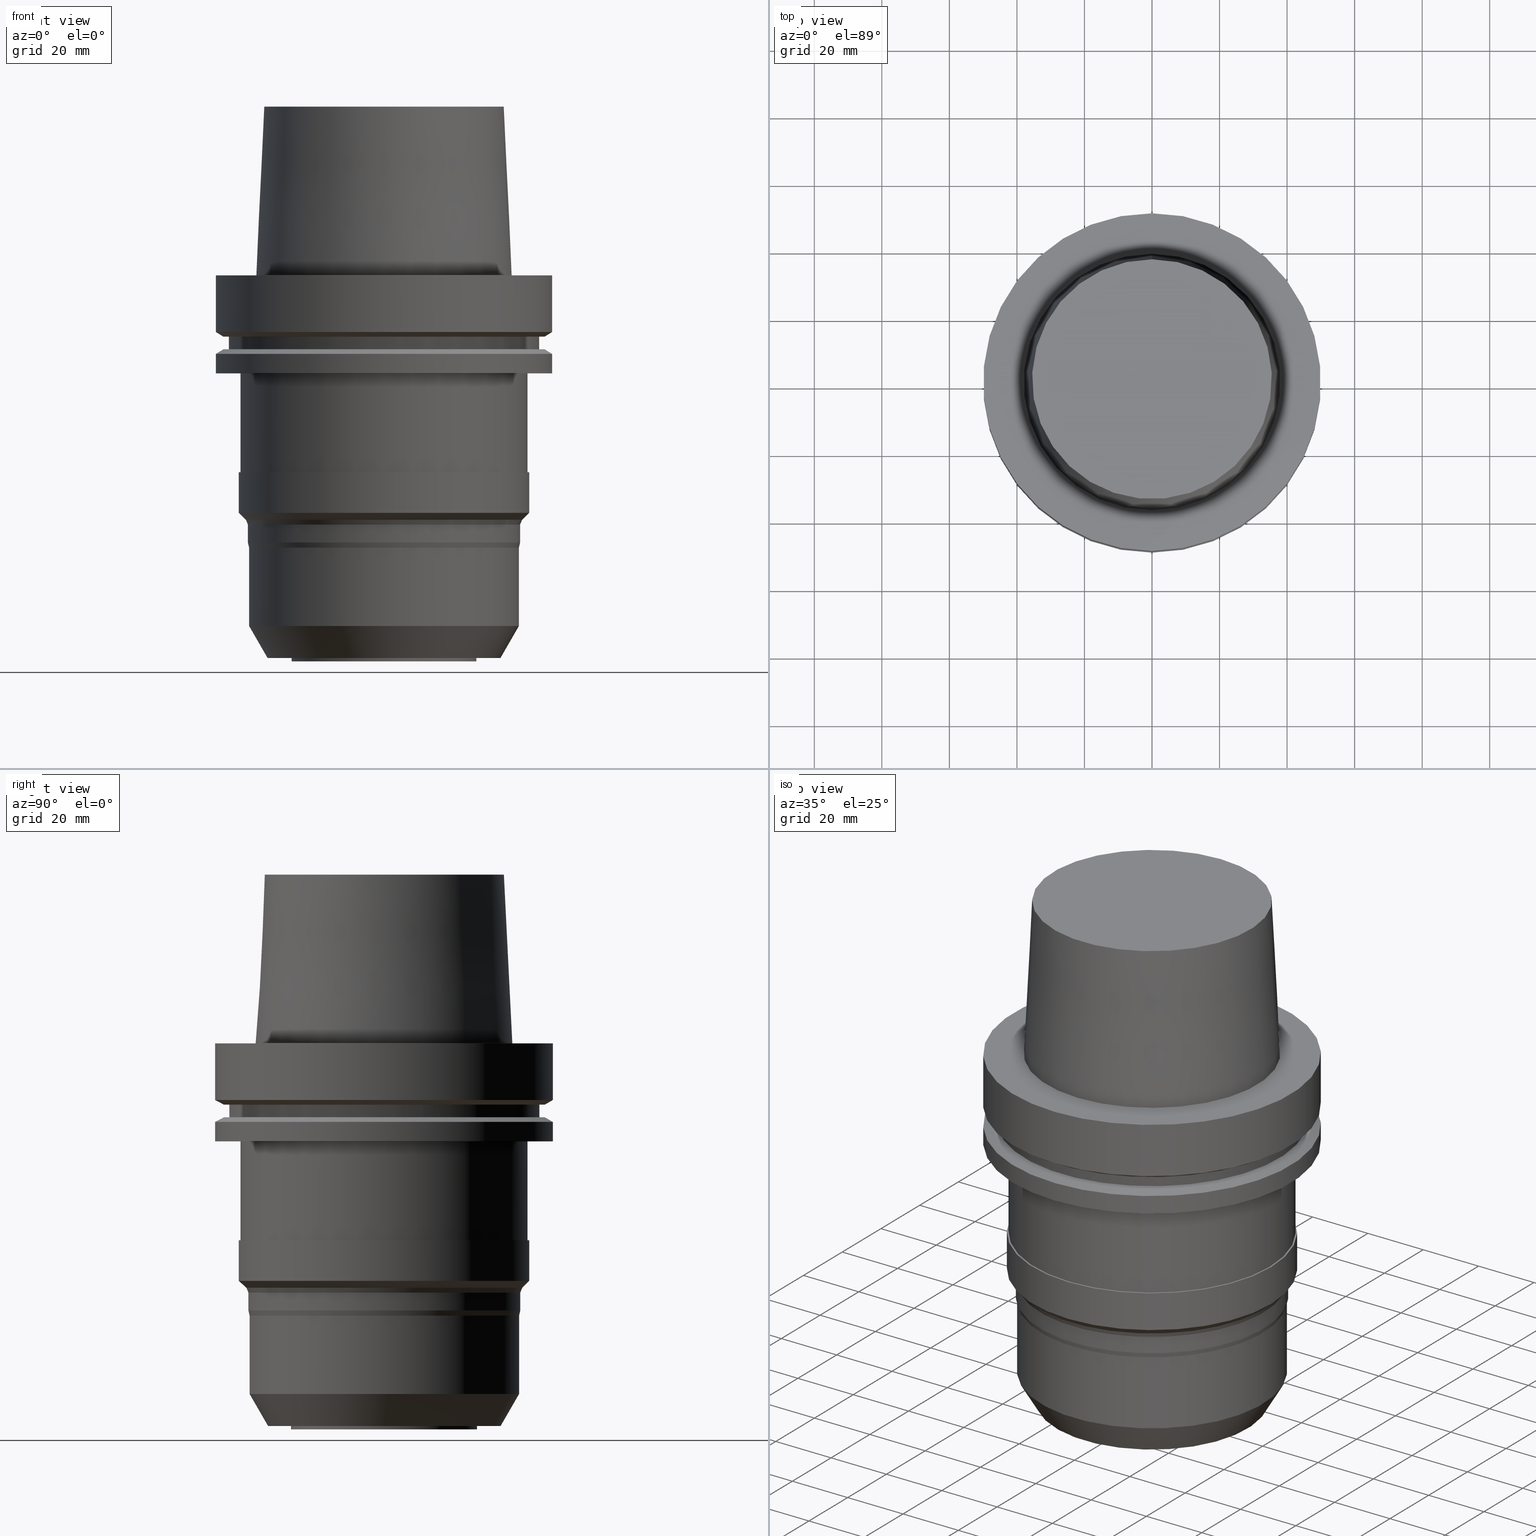
[diagram: canonical four-view strip — front | top / right | iso, engineering-drawing reading convention]
A machine part, canonical four-view strip (front | top / right | iso — engineering-drawing reading convention). The complete STEP part file that produces these views, byte-faithful:
ISO-10303-21;
HEADER;
FILE_DESCRIPTION((''),'1');
FILE_NAME('V:/90_\X2\53D65F9730C730FC30BF\X0\/00_\X2\6DE18DEF30C730FC30BF\X0\/ALL/HSK-BKUS\X2\52A05DE556F3\X0\_201801/HSK-A100-MEGADPG/HSK-A100-MEGA1.250DPG-4.5.stp','2018-02-01T05:08:22',(''),(''),'Spatial Interop R21 SP3','Kubotek KeyCreator 2011 V10.0.2 (22737)',' ');
FILE_SCHEMA(('automotive_design'));
ENDSEC;
DATA;
#1=MECHANICAL_DESIGN_GEOMETRIC_PRESENTATION_REPRESENTATION(' ',(#10,#11,#12,#13,#14,#15,#16,#17,#18,#19,#20,#21,#22,#23,#24,#25,#26,#27,#28,#29,#30,#31,#32,#33,#34,#35,#36,#37,#38,#39,#40,#41,#42,#43,#44,#45,#46,#47,#48,#49,#50,#51,#52,#53,#54,#55),#6);
#2=PRODUCT_DEFINITION_CONTEXT('',#56,'design');
#3=APPLICATION_PROTOCOL_DEFINITION('INTERNATIONAL STANDARD','automotive_design',1994,#56);
#4=PRODUCT_CATEGORY_RELATIONSHIP('NONE','NONE',#57,#58);
#5=SHAPE_DEFINITION_REPRESENTATION(#59,#60);
#6= (GEOMETRIC_REPRESENTATION_CONTEXT(3)GLOBAL_UNCERTAINTY_ASSIGNED_CONTEXT((#63))GLOBAL_UNIT_ASSIGNED_CONTEXT((#65,#66,#67))REPRESENTATION_CONTEXT('NONE','WORKSPACE'));
#10=STYLED_ITEM('',(#69,#70),#71);
#11=STYLED_ITEM('',(#72),#73);
#12=STYLED_ITEM('',(#74,#75),#76);
#13=STYLED_ITEM('',(#77,#78),#79);
#14=STYLED_ITEM('',(#80),#81);
#15=STYLED_ITEM('',(#82),#83);
#16=STYLED_ITEM('',(#84),#85);
#17=STYLED_ITEM('',(#86,#87),#88);
#18=STYLED_ITEM('',(#89,#90),#91);
#19=STYLED_ITEM('',(#92,#93),#94);
#20=STYLED_ITEM('',(#95,#96),#97);
#21=STYLED_ITEM('',(#98),#99);
#22=STYLED_ITEM('',(#100,#101),#102);
#23=STYLED_ITEM('',(#103),#104);
#24=STYLED_ITEM('',(#105,#106),#107);
#25=STYLED_ITEM('',(#108),#109);
#26=STYLED_ITEM('',(#110),#111);
#27=STYLED_ITEM('',(#112),#113);
#28=STYLED_ITEM('',(#114,#115),#116);
#29=STYLED_ITEM('',(#117,#118),#119);
#30=STYLED_ITEM('',(#120,#121),#122);
#31=STYLED_ITEM('',(#123,#124),#125);
#32=STYLED_ITEM('',(#126),#127);
#33=STYLED_ITEM('',(#128),#129);
#34=STYLED_ITEM('',(#130),#131);
#35=STYLED_ITEM('',(#132,#133),#134);
#36=STYLED_ITEM('',(#135,#136),#137);
#37=STYLED_ITEM('',(#138,#139),#140);
#38=STYLED_ITEM('',(#141,#142),#143);
#39=STYLED_ITEM('',(#144),#145);
#40=STYLED_ITEM('',(#146,#147),#148);
#41=STYLED_ITEM('',(#149,#150),#151);
#42=STYLED_ITEM('',(#152),#153);
#43=STYLED_ITEM('',(#154),#155);
#44=STYLED_ITEM('',(#156),#157);
#45=STYLED_ITEM('',(#158,#159),#160);
#46=STYLED_ITEM('',(#161),#162);
#47=STYLED_ITEM('',(#163,#164),#165);
#48=STYLED_ITEM('',(#166,#167),#168);
#49=STYLED_ITEM('',(#169),#170);
#50=STYLED_ITEM('',(#171),#172);
#51=STYLED_ITEM('',(#173,#174),#175);
#52=STYLED_ITEM('',(#176),#177);
#53=STYLED_ITEM('',(#178),#179);
#54=STYLED_ITEM('',(#180,#181),#182);
#55=STYLED_ITEM('',(#183),#184);
#56=APPLICATION_CONTEXT(' ');
#57=PRODUCT_CATEGORY('part','NONE');
#58=PRODUCT_RELATED_PRODUCT_CATEGORY('detail',' ',(#185));
#59=PRODUCT_DEFINITION_SHAPE('NONE','NONE',#186);
#60=ADVANCED_BREP_SHAPE_REPRESENTATION('Unnamed[1]',(#148,#187),#6);
#63=UNCERTAINTY_MEASURE_WITH_UNIT(LENGTH_MEASURE(1.0E-006),#65,'','');
#65= (CONVERSION_BASED_UNIT('MILLIMETRE',#190)LENGTH_UNIT()NAMED_UNIT(#193));
#66= (NAMED_UNIT(#195)PLANE_ANGLE_UNIT()SI_UNIT($,.RADIAN.));
#67= (NAMED_UNIT(#195)SOLID_ANGLE_UNIT()SI_UNIT($,.STERADIAN.));
#69=PRESENTATION_STYLE_ASSIGNMENT((#201));
#70=PRESENTATION_STYLE_ASSIGNMENT((#202));
#71=ADVANCED_FACE('Unnamed[1]',(#203,#204),#205,.T.);
#72=PRESENTATION_STYLE_ASSIGNMENT((#206));
#73=EDGE_CURVE('Unnamed[1]',#207,#207,#208,.T.);
#74=PRESENTATION_STYLE_ASSIGNMENT((#209));
#75=PRESENTATION_STYLE_ASSIGNMENT((#210));
#76=ADVANCED_FACE('Unnamed[1]',(#211,#212),#213,.T.);
#77=PRESENTATION_STYLE_ASSIGNMENT((#214));
#78=PRESENTATION_STYLE_ASSIGNMENT((#215));
#79=ADVANCED_FACE('Unnamed[1]',(#216),#217,.T.);
#80=PRESENTATION_STYLE_ASSIGNMENT((#218));
#81=EDGE_CURVE('Unnamed[1]',#219,#219,#220,.T.);
#82=PRESENTATION_STYLE_ASSIGNMENT((#221));
#83=EDGE_CURVE('Unnamed[1]',#222,#222,#223,.T.);
#84=PRESENTATION_STYLE_ASSIGNMENT((#224));
#85=EDGE_CURVE('Unnamed[1]',#225,#225,#226,.T.);
#86=PRESENTATION_STYLE_ASSIGNMENT((#227));
#87=PRESENTATION_STYLE_ASSIGNMENT((#228));
#88=ADVANCED_FACE('Unnamed[1]',(#229,#230),#231,.T.);
#89=PRESENTATION_STYLE_ASSIGNMENT((#232));
#90=PRESENTATION_STYLE_ASSIGNMENT((#233));
#91=ADVANCED_FACE('Unnamed[1]',(#234,#235),#236,.T.);
#92=PRESENTATION_STYLE_ASSIGNMENT((#237));
#93=PRESENTATION_STYLE_ASSIGNMENT((#238));
#94=ADVANCED_FACE('Unnamed[1]',(#239,#240),#241,.T.);
#95=PRESENTATION_STYLE_ASSIGNMENT((#242));
#96=PRESENTATION_STYLE_ASSIGNMENT((#243));
#97=ADVANCED_FACE('Unnamed[1]',(#244,#245),#246,.T.);
#98=PRESENTATION_STYLE_ASSIGNMENT((#247));
#99=EDGE_CURVE('Unnamed[1]',#248,#248,#249,.T.);
#100=PRESENTATION_STYLE_ASSIGNMENT((#250));
#101=PRESENTATION_STYLE_ASSIGNMENT((#251));
#102=ADVANCED_FACE('Unnamed[1]',(#252,#253),#254,.T.);
#103=PRESENTATION_STYLE_ASSIGNMENT((#255));
#104=EDGE_CURVE('Unnamed[1]',#256,#256,#257,.T.);
#105=PRESENTATION_STYLE_ASSIGNMENT((#258));
#106=PRESENTATION_STYLE_ASSIGNMENT((#259));
#107=ADVANCED_FACE('Unnamed[1]',(#260),#261,.T.);
#108=PRESENTATION_STYLE_ASSIGNMENT((#262));
#109=EDGE_CURVE('Unnamed[1]',#263,#263,#264,.T.);
#110=PRESENTATION_STYLE_ASSIGNMENT((#265));
#111=EDGE_CURVE('Unnamed[1]',#266,#266,#267,.T.);
#112=PRESENTATION_STYLE_ASSIGNMENT((#268));
#113=EDGE_CURVE('Unnamed[1]',#269,#269,#270,.T.);
#114=PRESENTATION_STYLE_ASSIGNMENT((#271));
#115=PRESENTATION_STYLE_ASSIGNMENT((#272));
#116=ADVANCED_FACE('Unnamed[1]',(#273,#274),#275,.T.);
#117=PRESENTATION_STYLE_ASSIGNMENT((#276));
#118=PRESENTATION_STYLE_ASSIGNMENT((#277));
#119=ADVANCED_FACE('Unnamed[1]',(#278,#279),#280,.T.);
#120=PRESENTATION_STYLE_ASSIGNMENT((#281));
#121=PRESENTATION_STYLE_ASSIGNMENT((#282));
#122=ADVANCED_FACE('Unnamed[1]',(#283,#284),#285,.T.);
#123=PRESENTATION_STYLE_ASSIGNMENT((#286));
#124=PRESENTATION_STYLE_ASSIGNMENT((#287));
#125=ADVANCED_FACE('Unnamed[1]',(#288,#289),#290,.T.);
#126=PRESENTATION_STYLE_ASSIGNMENT((#291));
#127=EDGE_CURVE('Unnamed[1]',#292,#292,#293,.T.);
#128=PRESENTATION_STYLE_ASSIGNMENT((#294));
#129=EDGE_CURVE('Unnamed[1]',#295,#295,#296,.T.);
#130=PRESENTATION_STYLE_ASSIGNMENT((#297));
#131=EDGE_CURVE('Unnamed[1]',#298,#298,#299,.T.);
#132=PRESENTATION_STYLE_ASSIGNMENT((#300));
#133=PRESENTATION_STYLE_ASSIGNMENT((#301));
#134=ADVANCED_FACE('Unnamed[1]',(#302,#303),#304,.T.);
#135=PRESENTATION_STYLE_ASSIGNMENT((#305));
#136=PRESENTATION_STYLE_ASSIGNMENT((#306));
#137=ADVANCED_FACE('Unnamed[1]',(#307,#308),#309,.T.);
#138=PRESENTATION_STYLE_ASSIGNMENT((#310));
#139=PRESENTATION_STYLE_ASSIGNMENT((#311));
#140=ADVANCED_FACE('Unnamed[1]',(#312,#313),#314,.T.);
#141=PRESENTATION_STYLE_ASSIGNMENT((#315));
#142=PRESENTATION_STYLE_ASSIGNMENT((#316));
#143=ADVANCED_FACE('Unnamed[1]',(#317,#318),#319,.T.);
#144=PRESENTATION_STYLE_ASSIGNMENT((#320));
#145=EDGE_CURVE('Unnamed[1]',#321,#321,#322,.T.);
#146=PRESENTATION_STYLE_ASSIGNMENT((#323));
#147=PRESENTATION_STYLE_ASSIGNMENT((#324));
#148=MANIFOLD_SOLID_BREP('Unnamed[1]',#325);
#149=PRESENTATION_STYLE_ASSIGNMENT((#326));
#150=PRESENTATION_STYLE_ASSIGNMENT((#327));
#151=ADVANCED_FACE('Unnamed[1]',(#328,#329),#330,.T.);
#152=PRESENTATION_STYLE_ASSIGNMENT((#331));
#153=EDGE_CURVE('Unnamed[1]',#332,#332,#333,.T.);
#154=PRESENTATION_STYLE_ASSIGNMENT((#334));
#155=EDGE_CURVE('Unnamed[1]',#335,#335,#336,.T.);
#156=PRESENTATION_STYLE_ASSIGNMENT((#337));
#157=EDGE_CURVE('Unnamed[1]',#338,#338,#339,.T.);
#158=PRESENTATION_STYLE_ASSIGNMENT((#340));
#159=PRESENTATION_STYLE_ASSIGNMENT((#341));
#160=ADVANCED_FACE('Unnamed[1]',(#342,#343),#344,.T.);
#161=PRESENTATION_STYLE_ASSIGNMENT((#345));
#162=EDGE_CURVE('Unnamed[1]',#346,#346,#347,.T.);
#163=PRESENTATION_STYLE_ASSIGNMENT((#348));
#164=PRESENTATION_STYLE_ASSIGNMENT((#349));
#165=ADVANCED_FACE('Unnamed[1]',(#350,#351),#352,.T.);
#166=PRESENTATION_STYLE_ASSIGNMENT((#353));
#167=PRESENTATION_STYLE_ASSIGNMENT((#354));
#168=ADVANCED_FACE('Unnamed[1]',(#355,#356),#357,.T.);
#169=PRESENTATION_STYLE_ASSIGNMENT((#358));
#170=EDGE_CURVE('Unnamed[1]',#359,#359,#360,.T.);
#171=PRESENTATION_STYLE_ASSIGNMENT((#361));
#172=EDGE_CURVE('Unnamed[1]',#362,#362,#363,.T.);
#173=PRESENTATION_STYLE_ASSIGNMENT((#364));
#174=PRESENTATION_STYLE_ASSIGNMENT((#365));
#175=ADVANCED_FACE('Unnamed[1]',(#366,#367),#368,.T.);
#176=PRESENTATION_STYLE_ASSIGNMENT((#369));
#177=EDGE_CURVE('Unnamed[1]',#370,#370,#371,.T.);
#178=PRESENTATION_STYLE_ASSIGNMENT((#372));
#179=EDGE_CURVE('Unnamed[1]',#373,#373,#374,.T.);
#180=PRESENTATION_STYLE_ASSIGNMENT((#375));
#181=PRESENTATION_STYLE_ASSIGNMENT((#376));
#182=ADVANCED_FACE('Unnamed[1]',(#377,#378),#379,.T.);
#183=PRESENTATION_STYLE_ASSIGNMENT((#380));
#184=EDGE_CURVE('Unnamed[1]',#381,#381,#382,.T.);
#185=PRODUCT('Unnamed[1]','Unnamed[1]','PART-Unnamed[1]-DESC',(#383));
#186=PRODUCT_DEFINITION('NONE','NONE',#384,#2);
#187=AXIS2_PLACEMENT_3D('',#385,#386,#387);
#190=LENGTH_MEASURE_WITH_UNIT(LENGTH_MEASURE(1.0),#388);
#193=DIMENSIONAL_EXPONENTS(1.0,0.0,0.0,0.0,0.0,0.0,0.0);
#195=DIMENSIONAL_EXPONENTS(0.0,0.0,0.0,0.0,0.0,0.0,0.0);
#201=SURFACE_STYLE_USAGE(.BOTH.,#389);
#202=CURVE_STYLE('',#390,POSITIVE_LENGTH_MEASURE(1000.0),#391);
#203=FACE_BOUND('',#392,.T.);
#204=FACE_BOUND('',#393,.T.);
#205=CYLINDRICAL_SURFACE('',#394,46.0000000000001);
#206=CURVE_STYLE('',#395,POSITIVE_LENGTH_MEASURE(1000.0),#396);
#207=VERTEX_POINT('',#397);
#208=CIRCLE('',#398,37.9999999999997);
#209=SURFACE_STYLE_USAGE(.BOTH.,#399);
#210=CURVE_STYLE('',#400,POSITIVE_LENGTH_MEASURE(1000.0),#401);
#211=FACE_BOUND('',#402,.T.);
#212=FACE_BOUND('',#403,.T.);
#213=CYLINDRICAL_SURFACE('',#404,42.4999999999993);
#214=SURFACE_STYLE_USAGE(.BOTH.,#405);
#215=CURVE_STYLE('',#406,POSITIVE_LENGTH_MEASURE(1000.0),#407);
#216=FACE_OUTER_BOUND('',#408,.T.);
#217=PLANE('',#409);
#218=CURVE_STYLE('',#410,POSITIVE_LENGTH_MEASURE(1000.0),#411);
#219=VERTEX_POINT('',#412);
#220=CIRCLE('',#413,40.3499995570342);
#221=CURVE_STYLE('',#414,POSITIVE_LENGTH_MEASURE(1000.0),#415);
#222=VERTEX_POINT('',#416);
#223=CIRCLE('',#417,39.9999995570343);
#224=CURVE_STYLE('',#418,POSITIVE_LENGTH_MEASURE(1000.0),#419);
#225=VERTEX_POINT('',#420);
#226=CIRCLE('',#421,46.0000000000001);
#227=SURFACE_STYLE_USAGE(.BOTH.,#422);
#228=CURVE_STYLE('',#423,POSITIVE_LENGTH_MEASURE(1000.0),#424);
#229=FACE_BOUND('',#425,.T.);
#230=FACE_OUTER_BOUND('',#426,.T.);
#231=PLANE('',#427);
#232=SURFACE_STYLE_USAGE(.BOTH.,#428);
#233=CURVE_STYLE('',#429,POSITIVE_LENGTH_MEASURE(1000.0),#430);
#234=FACE_BOUND('',#431,.T.);
#235=FACE_BOUND('',#432,.T.);
#236=CYLINDRICAL_SURFACE('',#433,50.0000000000001);
#237=SURFACE_STYLE_USAGE(.BOTH.,#434);
#238=CURVE_STYLE('',#435,POSITIVE_LENGTH_MEASURE(1000.0),#436);
#239=FACE_BOUND('',#437,.T.);
#240=FACE_BOUND('',#438,.T.);
#241=CYLINDRICAL_SURFACE('',#439,42.9999996609531);
#242=SURFACE_STYLE_USAGE(.BOTH.,#440);
#243=CURVE_STYLE('',#441,POSITIVE_LENGTH_MEASURE(1000.0),#442);
#244=FACE_BOUND('',#443,.T.);
#245=FACE_BOUND('',#444,.T.);
#246=CONICAL_SURFACE('',#445,41.9678927675239,0.785398163396748);
#247=CURVE_STYLE('',#446,POSITIVE_LENGTH_MEASURE(1000.0),#447);
#248=VERTEX_POINT('',#448);
#249=CIRCLE('',#449,42.9999995403876);
#250=SURFACE_STYLE_USAGE(.BOTH.,#450);
#251=CURVE_STYLE('',#451,POSITIVE_LENGTH_MEASURE(1000.0),#452);
#252=FACE_BOUND('',#453,.T.);
#253=FACE_BOUND('',#454,.T.);
#254=CONICAL_SURFACE('',#455,40.6428927758471,0.392699081698358);
#255=CURVE_STYLE('',#456,POSITIVE_LENGTH_MEASURE(1000.0),#457);
#256=VERTEX_POINT('',#458);
#257=CIRCLE('',#459,50.0000000000001);
#258=SURFACE_STYLE_USAGE(.BOTH.,#460);
#259=CURVE_STYLE('',#461,POSITIVE_LENGTH_MEASURE(1000.0),#462);
#260=FACE_OUTER_BOUND('',#463,.T.);
#261=PLANE('',#464);
#262=CURVE_STYLE('',#465,POSITIVE_LENGTH_MEASURE(1000.0),#466);
#263=VERTEX_POINT('',#467);
#264=CIRCLE('',#468,47.6225952641917);
#265=CURVE_STYLE('',#469,POSITIVE_LENGTH_MEASURE(1000.0),#470);
#266=VERTEX_POINT('',#471);
#267=CIRCLE('',#472,39.9999995570343);
#268=CURVE_STYLE('',#473,POSITIVE_LENGTH_MEASURE(1000.0),#474);
#269=VERTEX_POINT('',#475);
#270=CIRCLE('',#476,42.4999999999988);
#271=SURFACE_STYLE_USAGE(.BOTH.,#477);
#272=CURVE_STYLE('',#478,POSITIVE_LENGTH_MEASURE(1000.0),#479);
#273=FACE_BOUND('',#480,.T.);
#274=FACE_BOUND('',#481,.T.);
#275=CYLINDRICAL_SURFACE('',#482,39.9999995570343);
#276=SURFACE_STYLE_USAGE(.BOTH.,#483);
#277=CURVE_STYLE('',#484,POSITIVE_LENGTH_MEASURE(1000.0),#485);
#278=FACE_BOUND('',#486,.T.);
#279=FACE_BOUND('',#487,.T.);
#280=CYLINDRICAL_SURFACE('',#488,40.3499995570342);
#281=SURFACE_STYLE_USAGE(.BOTH.,#489);
#282=CURVE_STYLE('',#490,POSITIVE_LENGTH_MEASURE(1000.0),#491);
#283=FACE_OUTER_BOUND('',#492,.T.);
#284=FACE_BOUND('',#493,.T.);
#285=PLANE('',#494);
#286=SURFACE_STYLE_USAGE(.BOTH.,#495);
#287=CURVE_STYLE('',#496,POSITIVE_LENGTH_MEASURE(1000.0),#497);
#288=FACE_BOUND('',#498,.T.);
#289=FACE_BOUND('',#499,.T.);
#290=CONICAL_SURFACE('',#500,36.7499999999998,0.0499583957219389);
#291=CURVE_STYLE('',#501,POSITIVE_LENGTH_MEASURE(1000.0),#502);
#292=VERTEX_POINT('',#503);
#293=CIRCLE('',#504,40.9357859946601);
#294=CURVE_STYLE('',#505,POSITIVE_LENGTH_MEASURE(1000.0),#506);
#295=VERTEX_POINT('',#507);
#296=CIRCLE('',#508,35.4999999999999);
#297=CURVE_STYLE('',#509,POSITIVE_LENGTH_MEASURE(1000.0),#510);
#298=VERTEX_POINT('',#511);
#299=CIRCLE('',#512,34.5151641397742);
#300=SURFACE_STYLE_USAGE(.BOTH.,#513);
#301=CURVE_STYLE('',#514,POSITIVE_LENGTH_MEASURE(1000.0),#515);
#302=FACE_OUTER_BOUND('',#516,.T.);
#303=FACE_BOUND('',#517,.T.);
#304=PLANE('',#518);
#305=SURFACE_STYLE_USAGE(.BOTH.,#519);
#306=CURVE_STYLE('',#520,POSITIVE_LENGTH_MEASURE(1000.0),#521);
#307=FACE_BOUND('',#522,.T.);
#308=FACE_BOUND('',#523,.T.);
#309=CONICAL_SURFACE('',#524,37.2575818484042,0.523598775598334);
#310=SURFACE_STYLE_USAGE(.BOTH.,#525);
#311=CURVE_STYLE('',#526,POSITIVE_LENGTH_MEASURE(1000.0),#527);
#312=FACE_BOUND('',#528,.T.);
#313=FACE_OUTER_BOUND('',#529,.T.);
#314=PLANE('',#530);
#315=SURFACE_STYLE_USAGE(.BOTH.,#531);
#316=CURVE_STYLE('',#532,POSITIVE_LENGTH_MEASURE(1000.0),#533);
#317=FACE_BOUND('',#534,.T.);
#318=FACE_BOUND('',#535,.T.);
#319=CONICAL_SURFACE('',#536,48.8112976320959,1.04719755119658);
#320=CURVE_STYLE('',#537,POSITIVE_LENGTH_MEASURE(1000.0),#538);
#321=VERTEX_POINT('',#539);
#322=CIRCLE('',#540,50.0000000000001);
#323=SURFACE_STYLE_USAGE(.BOTH.,#541);
#324=CURVE_STYLE('',#542,POSITIVE_LENGTH_MEASURE(1000.0),#543);
#325=CLOSED_SHELL('',(#107,#125,#168,#91,#165,#140,#71,#122,#143,#182,#88,#76,#134,#94,#97,#102,#119,#151,#116,#137,#160,#175,#79));
#326=SURFACE_STYLE_USAGE(.BOTH.,#544);
#327=CURVE_STYLE('',#545,POSITIVE_LENGTH_MEASURE(1000.0),#546);
#328=FACE_BOUND('',#547,.T.);
#329=FACE_BOUND('',#548,.T.);
#330=CONICAL_SURFACE('',#549,40.1749995570342,0.229231933387025);
#331=CURVE_STYLE('',#550,POSITIVE_LENGTH_MEASURE(1000.0),#551);
#332=VERTEX_POINT('',#552);
#333=CIRCLE('',#553,40.3499995570342);
#334=CURVE_STYLE('',#554,POSITIVE_LENGTH_MEASURE(1000.0),#555);
#335=VERTEX_POINT('',#556);
#336=CIRCLE('',#557,47.6225952641917);
#337=CURVE_STYLE('',#558,POSITIVE_LENGTH_MEASURE(1000.0),#559);
#338=VERTEX_POINT('',#560);
#339=CIRCLE('',#561,27.5502135623744);
#340=SURFACE_STYLE_USAGE(.BOTH.,#562);
#341=CURVE_STYLE('',#563,POSITIVE_LENGTH_MEASURE(1000.0),#564);
#342=FACE_BOUND('',#565,.T.);
#343=FACE_OUTER_BOUND('',#566,.T.);
#344=PLANE('',#567);
#345=CURVE_STYLE('',#568,POSITIVE_LENGTH_MEASURE(1000.0),#569);
#346=VERTEX_POINT('',#570);
#347=CIRCLE('',#571,42.5);
#348=SURFACE_STYLE_USAGE(.BOTH.,#572);
#349=CURVE_STYLE('',#573,POSITIVE_LENGTH_MEASURE(1000.0),#574);
#350=FACE_BOUND('',#575,.T.);
#351=FACE_BOUND('',#576,.T.);
#352=CONICAL_SURFACE('',#577,48.8112976320959,1.04719755119659);
#353=SURFACE_STYLE_USAGE(.BOTH.,#578);
#354=CURVE_STYLE('',#579,POSITIVE_LENGTH_MEASURE(1000.0),#580);
#355=FACE_OUTER_BOUND('',#581,.T.);
#356=FACE_BOUND('',#582,.T.);
#357=PLANE('',#583);
#358=CURVE_STYLE('',#584,POSITIVE_LENGTH_MEASURE(1000.0),#585);
#359=VERTEX_POINT('',#586);
#360=CIRCLE('',#587,50.0000000000001);
#361=CURVE_STYLE('',#588,POSITIVE_LENGTH_MEASURE(1000.0),#589);
#362=VERTEX_POINT('',#590);
#363=CIRCLE('',#591,27.5502135623744);
#364=SURFACE_STYLE_USAGE(.BOTH.,#592);
#365=CURVE_STYLE('',#593,POSITIVE_LENGTH_MEASURE(1000.0),#594);
#366=FACE_BOUND('',#595,.T.);
#367=FACE_BOUND('',#596,.T.);
#368=CYLINDRICAL_SURFACE('',#597,27.5502135623744);
#369=CURVE_STYLE('',#598,POSITIVE_LENGTH_MEASURE(1000.0),#599);
#370=VERTEX_POINT('',#600);
#371=CIRCLE('',#601,46.0000000000001);
#372=CURVE_STYLE('',#602,POSITIVE_LENGTH_MEASURE(1000.0),#603);
#373=VERTEX_POINT('',#604);
#374=CIRCLE('',#605,50.0000000000001);
#375=SURFACE_STYLE_USAGE(.BOTH.,#606);
#376=CURVE_STYLE('',#607,POSITIVE_LENGTH_MEASURE(1000.0),#608);
#377=FACE_BOUND('',#609,.T.);
#378=FACE_BOUND('',#610,.T.);
#379=CYLINDRICAL_SURFACE('',#611,50.0000000000001);
#380=CURVE_STYLE('',#612,POSITIVE_LENGTH_MEASURE(1000.0),#613);
#381=VERTEX_POINT('',#614);
#382=CIRCLE('',#615,42.9999997815185);
#383=PRODUCT_CONTEXT('',#56,'mechanical');
#384=PRODUCT_DEFINITION_FORMATION_WITH_SPECIFIED_SOURCE(' ','NONE',#185,.NOT_KNOWN.);
#385=CARTESIAN_POINT('',(0.0,0.0,0.0));
#386=DIRECTION('',(0.0,0.0,1.0));
#387=DIRECTION('',(1.0,0.0,0.0));
#388= (NAMED_UNIT(#193)LENGTH_UNIT()SI_UNIT(.MILLI.,.METRE.));
#389=SURFACE_SIDE_STYLE('',(#617));
#390=DRAUGHTING_PRE_DEFINED_CURVE_FONT('continuous');
#391=COLOUR_RGB('',0.0,1.0,0.0);
#392=EDGE_LOOP('',(#618));
#393=EDGE_LOOP('',(#619));
#394=AXIS2_PLACEMENT_3D('',#620,#621,#622);
#395=DRAUGHTING_PRE_DEFINED_CURVE_FONT('continuous');
#396=COLOUR_RGB('',0.0,1.0,0.0);
#397=CARTESIAN_POINT('',(-4.68386162474972E-031,37.9999999999997,4.6536578367599E-015));
#398=AXIS2_PLACEMENT_3D('',#623,#624,#625);
#399=SURFACE_SIDE_STYLE('',(#626));
#400=DRAUGHTING_PRE_DEFINED_CURVE_FONT('continuous');
#401=COLOUR_RGB('',0.0,1.0,0.0);
#402=EDGE_LOOP('',(#627));
#403=EDGE_LOOP('',(#628));
#404=AXIS2_PLACEMENT_3D('',#629,#630,#631);
#405=SURFACE_SIDE_STYLE('',(#632));
#406=DRAUGHTING_PRE_DEFINED_CURVE_FONT('continuous');
#407=COLOUR_RGB('',0.0,1.0,0.0);
#408=EDGE_LOOP('',(#633));
#409=AXIS2_PLACEMENT_3D('',#634,#635,#636);
#410=DRAUGHTING_PRE_DEFINED_CURVE_FONT('continuous');
#411=COLOUR_RGB('',0.0,1.0,0.0);
#412=CARTESIAN_POINT('',(4.51762573122244E-015,40.3499995570342,-73.7784271247479));
#413=AXIS2_PLACEMENT_3D('',#637,#638,#639);
#414=DRAUGHTING_PRE_DEFINED_CURVE_FONT('continuous');
#415=COLOUR_RGB('',0.0,1.0,0.0);
#416=CARTESIAN_POINT('',(6.355916053967E-015,39.9999995570343,-103.799986386152));
#417=AXIS2_PLACEMENT_3D('',#640,#641,#642);
#418=DRAUGHTING_PRE_DEFINED_CURVE_FONT('continuous');
#419=COLOUR_RGB('',0.0,1.0,0.0);
#420=CARTESIAN_POINT('',(1.33945743656734E-015,46.0,-21.8749999999988));
#421=AXIS2_PLACEMENT_3D('',#643,#644,#645);
#422=SURFACE_SIDE_STYLE('',(#646));
#423=DRAUGHTING_PRE_DEFINED_CURVE_FONT('continuous');
#424=COLOUR_RGB('',0.0,1.0,0.0);
#425=EDGE_LOOP('',(#647));
#426=EDGE_LOOP('',(#648));
#427=AXIS2_PLACEMENT_3D('',#649,#650,#651);
#428=SURFACE_SIDE_STYLE('',(#652));
#429=DRAUGHTING_PRE_DEFINED_CURVE_FONT('continuous');
#430=COLOUR_RGB('',0.0,1.0,0.0);
#431=EDGE_LOOP('',(#653));
#432=EDGE_LOOP('',(#654));
#433=AXIS2_PLACEMENT_3D('',#655,#656,#657);
#434=SURFACE_SIDE_STYLE('',(#658));
#435=DRAUGHTING_PRE_DEFINED_CURVE_FONT('continuous');
#436=COLOUR_RGB('',0.0,1.0,0.0);
#437=EDGE_LOOP('',(#659));
#438=EDGE_LOOP('',(#660));
#439=AXIS2_PLACEMENT_3D('',#661,#662,#663);
#440=SURFACE_SIDE_STYLE('',(#664));
#441=DRAUGHTING_PRE_DEFINED_CURVE_FONT('continuous');
#442=COLOUR_RGB('',0.0,1.0,0.0);
#443=EDGE_LOOP('',(#665));
#444=EDGE_LOOP('',(#666));
#445=AXIS2_PLACEMENT_3D('',#667,#668,#669);
#446=DRAUGHTING_PRE_DEFINED_CURVE_FONT('continuous');
#447=COLOUR_RGB('',0.0,1.0,0.0);
#448=CARTESIAN_POINT('',(4.30463350002218E-015,42.9999995403876,-70.3000000166453));
#449=AXIS2_PLACEMENT_3D('',#670,#671,#672);
#450=SURFACE_SIDE_STYLE('',(#673));
#451=DRAUGHTING_PRE_DEFINED_CURVE_FONT('continuous');
#452=COLOUR_RGB('',0.0,1.0,0.0);
#453=EDGE_LOOP('',(#674));
#454=EDGE_LOOP('',(#675));
#455=AXIS2_PLACEMENT_3D('',#676,#677,#678);
#456=DRAUGHTING_PRE_DEFINED_CURVE_FONT('continuous');
#457=COLOUR_RGB('',0.0,1.0,0.0);
#458=CARTESIAN_POINT('',(1.42350465640822E-015,50.0,-23.2475952641907));
#459=AXIS2_PLACEMENT_3D('',#679,#680,#681);
#460=SURFACE_SIDE_STYLE('',(#682));
#461=DRAUGHTING_PRE_DEFINED_CURVE_FONT('continuous');
#462=COLOUR_RGB('',0.0,1.0,0.0);
#463=EDGE_LOOP('',(#683));
#464=AXIS2_PLACEMENT_3D('',#684,#685,#686);
#465=DRAUGHTING_PRE_DEFINED_CURVE_FONT('continuous');
#466=COLOUR_RGB('',0.0,1.0,0.0);
#467=CARTESIAN_POINT('',(1.33945743656736E-015,47.6225952641917,-21.8749999999991));
#468=AXIS2_PLACEMENT_3D('',#687,#688,#689);
#469=DRAUGHTING_PRE_DEFINED_CURVE_FONT('continuous');
#470=COLOUR_RGB('',0.0,1.0,0.0);
#471=CARTESIAN_POINT('',(4.93532660051809E-015,39.9999995570343,-80.5999999992529));
#472=AXIS2_PLACEMENT_3D('',#690,#691,#692);
#473=DRAUGHTING_PRE_DEFINED_CURVE_FONT('continuous');
#474=COLOUR_RGB('',0.0,1.0,0.0);
#475=CARTESIAN_POINT('',(1.77573785876361E-015,42.4999999999987,-28.9999999999991));
#476=AXIS2_PLACEMENT_3D('',#693,#694,#695);
#477=SURFACE_SIDE_STYLE('',(#696));
#478=DRAUGHTING_PRE_DEFINED_CURVE_FONT('continuous');
#479=COLOUR_RGB('',0.0,1.0,0.0);
#480=EDGE_LOOP('',(#697));
#481=EDGE_LOOP('',(#698));
#482=AXIS2_PLACEMENT_3D('',#699,#700,#701);
#483=SURFACE_SIDE_STYLE('',(#702));
#484=DRAUGHTING_PRE_DEFINED_CURVE_FONT('continuous');
#485=COLOUR_RGB('',0.0,1.0,0.0);
#486=EDGE_LOOP('',(#703));
#487=EDGE_LOOP('',(#704));
#488=AXIS2_PLACEMENT_3D('',#705,#706,#707);
#489=SURFACE_SIDE_STYLE('',(#708));
#490=DRAUGHTING_PRE_DEFINED_CURVE_FONT('continuous');
#491=COLOUR_RGB('',0.0,1.0,0.0);
#492=EDGE_LOOP('',(#709));
#493=EDGE_LOOP('',(#710));
#494=AXIS2_PLACEMENT_3D('',#711,#712,#713);
#495=SURFACE_SIDE_STYLE('',(#714));
#496=DRAUGHTING_PRE_DEFINED_CURVE_FONT('continuous');
#497=COLOUR_RGB('',0.0,1.0,0.0);
#498=EDGE_LOOP('',(#715));
#499=EDGE_LOOP('',(#716));
#500=AXIS2_PLACEMENT_3D('',#717,#718,#719);
#501=DRAUGHTING_PRE_DEFINED_CURVE_FONT('continuous');
#502=COLOUR_RGB('',0.0,1.0,0.0);
#503=CARTESIAN_POINT('',(4.43103012559895E-015,40.93578599466,-72.3642135623758));
#504=AXIS2_PLACEMENT_3D('',#720,#721,#722);
#505=DRAUGHTING_PRE_DEFINED_CURVE_FONT('continuous');
#506=COLOUR_RGB('',0.0,1.0,0.0);
#507=CARTESIAN_POINT('',(-3.06161699786838E-015,35.4999999999998,50.0));
#508=AXIS2_PLACEMENT_3D('',#723,#724,#725);
#509=DRAUGHTING_PRE_DEFINED_CURVE_FONT('continuous');
#510=COLOUR_RGB('',0.0,1.0,0.0);
#511=CARTESIAN_POINT('',(6.9376241171697E-015,34.5151641397742,-113.299999999999));
#512=AXIS2_PLACEMENT_3D('',#726,#727,#728);
#513=SURFACE_SIDE_STYLE('',(#729));
#514=DRAUGHTING_PRE_DEFINED_CURVE_FONT('continuous');
#515=COLOUR_RGB('',0.0,1.0,0.0);
#516=EDGE_LOOP('',(#730));
#517=EDGE_LOOP('',(#731));
#518=AXIS2_PLACEMENT_3D('',#732,#733,#734);
#519=SURFACE_SIDE_STYLE('',(#735));
#520=DRAUGHTING_PRE_DEFINED_CURVE_FONT('continuous');
#521=COLOUR_RGB('',0.0,1.0,0.0);
#522=EDGE_LOOP('',(#736));
#523=EDGE_LOOP('',(#737));
#524=AXIS2_PLACEMENT_3D('',#738,#739,#740);
#525=SURFACE_SIDE_STYLE('',(#741));
#526=DRAUGHTING_PRE_DEFINED_CURVE_FONT('continuous');
#527=COLOUR_RGB('',0.0,1.0,0.0);
#528=EDGE_LOOP('',(#742));
#529=EDGE_LOOP('',(#743));
#530=AXIS2_PLACEMENT_3D('',#744,#745,#746);
#531=SURFACE_SIDE_STYLE('',(#747));
#532=DRAUGHTING_PRE_DEFINED_CURVE_FONT('continuous');
#533=COLOUR_RGB('',0.0,1.0,0.0);
#534=EDGE_LOOP('',(#748));
#535=EDGE_LOOP('',(#749));
#536=AXIS2_PLACEMENT_3D('',#750,#751,#752);
#537=DRAUGHTING_PRE_DEFINED_CURVE_FONT('continuous');
#538=COLOUR_RGB('',0.0,1.0,0.0);
#539=CARTESIAN_POINT('',(-6.16297582203916E-031,50.0,6.12323399573677E-015));
#540=AXIS2_PLACEMENT_3D('',#753,#754,#755);
#541=SURFACE_SIDE_STYLE('',(#756));
#542=DRAUGHTING_PRE_DEFINED_CURVE_FONT('continuous');
#543=COLOUR_RGB('',0.0,1.0,0.0);
#544=SURFACE_SIDE_STYLE('',(#757));
#545=DRAUGHTING_PRE_DEFINED_CURVE_FONT('continuous');
#546=COLOUR_RGB('',0.0,1.0,0.0);
#547=EDGE_LOOP('',(#758));
#548=EDGE_LOOP('',(#759));
#549=AXIS2_PLACEMENT_3D('',#760,#761,#762);
#550=DRAUGHTING_PRE_DEFINED_CURVE_FONT('continuous');
#551=COLOUR_RGB('',0.0,1.0,0.0);
#552=CARTESIAN_POINT('',(4.84347809062774E-015,40.3499995570342,-79.0999999999993));
#553=AXIS2_PLACEMENT_3D('',#763,#764,#765);
#554=DRAUGHTING_PRE_DEFINED_CURVE_FONT('continuous');
#555=COLOUR_RGB('',0.0,1.0,0.0);
#556=CARTESIAN_POINT('',(1.10983616172729E-015,47.6225952641917,-18.125));
#557=AXIS2_PLACEMENT_3D('',#766,#767,#768);
#558=DRAUGHTING_PRE_DEFINED_CURVE_FONT('continuous');
#559=COLOUR_RGB('',0.0,1.0,0.0);
#560=CARTESIAN_POINT('',(6.99885645712712E-015,27.5502135623745,-114.3));
#561=AXIS2_PLACEMENT_3D('',#769,#770,#771);
#562=SURFACE_SIDE_STYLE('',(#772));
#563=DRAUGHTING_PRE_DEFINED_CURVE_FONT('continuous');
#564=COLOUR_RGB('',0.0,1.0,0.0);
#565=EDGE_LOOP('',(#773));
#566=EDGE_LOOP('',(#774));
#567=AXIS2_PLACEMENT_3D('',#775,#776,#777);
#568=DRAUGHTING_PRE_DEFINED_CURVE_FONT('continuous');
#569=COLOUR_RGB('',0.0,1.0,0.0);
#570=CARTESIAN_POINT('',(3.56984541951448E-015,42.4999999999999,-58.2999999999991));
#571=AXIS2_PLACEMENT_3D('',#778,#779,#780);
#572=SURFACE_SIDE_STYLE('',(#781));
#573=DRAUGHTING_PRE_DEFINED_CURVE_FONT('continuous');
#574=COLOUR_RGB('',0.0,1.0,0.0);
#575=EDGE_LOOP('',(#782));
#576=EDGE_LOOP('',(#783));
#577=AXIS2_PLACEMENT_3D('',#784,#785,#786);
#578=SURFACE_SIDE_STYLE('',(#787));
#579=DRAUGHTING_PRE_DEFINED_CURVE_FONT('continuous');
#580=COLOUR_RGB('',0.0,1.0,0.0);
#581=EDGE_LOOP('',(#788));
#582=EDGE_LOOP('',(#789));
#583=AXIS2_PLACEMENT_3D('',#790,#791,#792);
#584=DRAUGHTING_PRE_DEFINED_CURVE_FONT('continuous');
#585=COLOUR_RGB('',0.0,1.0,0.0);
#586=CARTESIAN_POINT('',(1.02578894188643E-015,50.0,-16.7524047358083));
#587=AXIS2_PLACEMENT_3D('',#793,#794,#795);
#588=DRAUGHTING_PRE_DEFINED_CURVE_FONT('continuous');
#589=COLOUR_RGB('',0.0,1.0,0.0);
#590=CARTESIAN_POINT('',(6.9376241171697E-015,27.5502135623745,-113.299999999999));
#591=AXIS2_PLACEMENT_3D('',#796,#797,#798);
#592=SURFACE_SIDE_STYLE('',(#799));
#593=DRAUGHTING_PRE_DEFINED_CURVE_FONT('continuous');
#594=COLOUR_RGB('',0.0,1.0,0.0);
#595=EDGE_LOOP('',(#800));
#596=EDGE_LOOP('',(#801));
#597=AXIS2_PLACEMENT_3D('',#802,#803,#804);
#598=DRAUGHTING_PRE_DEFINED_CURVE_FONT('continuous');
#599=COLOUR_RGB('',0.0,1.0,0.0);
#600=CARTESIAN_POINT('',(1.10983616172727E-015,46.0,-18.1249999999997));
#601=AXIS2_PLACEMENT_3D('',#805,#806,#807);
#602=DRAUGHTING_PRE_DEFINED_CURVE_FONT('continuous');
#603=COLOUR_RGB('',0.0,1.0,0.0);
#604=CARTESIAN_POINT('',(1.77573785876361E-015,50.0,-28.9999999999991));
#605=AXIS2_PLACEMENT_3D('',#808,#809,#810);
#606=SURFACE_SIDE_STYLE('',(#811));
#607=DRAUGHTING_PRE_DEFINED_CURVE_FONT('continuous');
#608=COLOUR_RGB('',0.0,1.0,0.0);
#609=EDGE_LOOP('',(#812));
#610=EDGE_LOOP('',(#813));
#611=AXIS2_PLACEMENT_3D('',#814,#815,#816);
#612=DRAUGHTING_PRE_DEFINED_CURVE_FONT('continuous');
#613=COLOUR_RGB('',0.0,1.0,0.0);
#614=CARTESIAN_POINT('',(3.56984541951448E-015,42.9999997815185,-58.2999999999991));
#615=AXIS2_PLACEMENT_3D('',#817,#818,#819);
#617=SURFACE_STYLE_FILL_AREA(#820);
#618=ORIENTED_EDGE('',*,*,#85,.F.);
#619=ORIENTED_EDGE('',*,*,#177,.T.);
#620=CARTESIAN_POINT('',(1.22464679914731E-015,-3.8764735120505E-014,-19.9999999999993));
#621=DIRECTION('',(6.12323399573677E-017,5.38768000306636E-016,-1.0));
#622=DIRECTION('',(-3.78171780836977E-032,1.0,5.38768000306636E-016));
#623=CARTESIAN_POINT('',(8.70163887006011E-031,-4.95400951266375E-014,-1.4210854715202E-014));
#624=DIRECTION('',(6.12323399573677E-017,5.38768000306608E-016,-1.0));
#625=DIRECTION('',(-3.78171780836933E-032,1.0,5.38768000306608E-016));
#626=SURFACE_STYLE_FILL_AREA(#821);
#627=ORIENTED_EDGE('',*,*,#162,.F.);
#628=ORIENTED_EDGE('',*,*,#113,.T.);
#629=CARTESIAN_POINT('',(2.67279163913904E-015,-2.60228719132528E-014,-43.6499999999991));
#630=DIRECTION('',(6.12323399573677E-017,5.38768000306656E-016,-1.0));
#631=DIRECTION('',(-3.78171780836962E-032,1.0,5.38768000306656E-016));
#632=SURFACE_STYLE_FILL_AREA(#822);
#633=ORIENTED_EDGE('',*,*,#157,.T.);
#634=CARTESIAN_POINT('',(6.99885645712712E-015,13.7751067811872,-114.3));
#635=DIRECTION('',(6.12323399573677E-017,1.22464679914735E-016,-1.0));
#636=DIRECTION('',(-1.23259516440783E-032,1.0,1.22464679914735E-016));
#637=CARTESIAN_POINT('',(4.51762573122244E-015,-9.79063947886739E-015,-73.7784271247479));
#638=DIRECTION('',(6.12323399573677E-017,5.38768000306648E-016,-1.0));
#639=DIRECTION('',(-3.78171780836928E-032,1.0,5.38768000306648E-016));
#640=CARTESIAN_POINT('',(6.355916053967E-015,6.38401597048685E-015,-103.799986386152));
#641=DIRECTION('',(6.12323399573677E-017,5.38768000306664E-016,-1.0));
#642=DIRECTION('',(-3.78171780836974E-032,1.0,5.38768000306664E-016));
#643=CARTESIAN_POINT('',(1.33945743656735E-015,-3.77545451199302E-014,-21.8749999999988));
#644=DIRECTION('',(6.12323399573677E-017,5.38768000306636E-016,-1.0));
#645=DIRECTION('',(-3.78171780836977E-032,1.0,5.38768000306636E-016));
#646=SURFACE_STYLE_FILL_AREA(#823);
#647=ORIENTED_EDGE('',*,*,#113,.F.);
#648=ORIENTED_EDGE('',*,*,#179,.T.);
#649=CARTESIAN_POINT('',(1.77573785876361E-015,46.2499999999994,-28.9999999999991));
#650=DIRECTION('',(6.12323399573677E-017,1.22464679914735E-016,-1.0));
#651=DIRECTION('',(-1.23259516440783E-032,1.0,1.22464679914735E-016));
#652=SURFACE_STYLE_FILL_AREA(#824);
#653=ORIENTED_EDGE('',*,*,#170,.F.);
#654=ORIENTED_EDGE('',*,*,#145,.T.);
#655=CARTESIAN_POINT('',(5.12894470943217E-016,-4.5027265326718E-014,-8.37620236790418));
#656=DIRECTION('',(6.12323399573677E-017,5.38768000306617E-016,-1.0));
#657=DIRECTION('',(-3.78171780836941E-032,1.0,5.38768000306617E-016));
#658=SURFACE_STYLE_FILL_AREA(#825);
#659=ORIENTED_EDGE('',*,*,#99,.F.);
#660=ORIENTED_EDGE('',*,*,#184,.T.);
#661=CARTESIAN_POINT('',(3.93723945976833E-015,-1.48973127024364E-014,-64.3000000083222));
#662=DIRECTION('',(6.12323399573677E-017,5.38768000306628E-016,-1.0));
#663=DIRECTION('',(-3.78171780836932E-032,1.0,5.38768000306628E-016));
#664=SURFACE_STYLE_FILL_AREA(#826);
#665=ORIENTED_EDGE('',*,*,#127,.F.);
#666=ORIENTED_EDGE('',*,*,#99,.T.);
#667=CARTESIAN_POINT('',(4.36783181281057E-015,-1.11086385939927E-014,-71.3321067895106));
#668=DIRECTION('',(-6.12323399573677E-017,-5.38768000306681E-016,1.0));
#669=DIRECTION('',(-3.78171780836992E-032,1.0,5.38768000306681E-016));
#670=CARTESIAN_POINT('',(4.30463350002218E-015,-1.16647046961122E-014,-70.3000000166453));
#671=DIRECTION('',(6.12323399573677E-017,5.38768000306639E-016,-1.0));
#672=DIRECTION('',(-3.78171780836963E-032,1.0,5.38768000306639E-016));
#673=SURFACE_STYLE_FILL_AREA(#827);
#674=ORIENTED_EDGE('',*,*,#81,.F.);
#675=ORIENTED_EDGE('',*,*,#127,.T.);
#676=CARTESIAN_POINT('',(4.47432792841069E-015,-1.01716059853703E-014,-73.0713203435619));
#677=DIRECTION('',(-6.12323399573677E-017,-5.38768000306608E-016,1.0));
#678=DIRECTION('',(-3.78171780836932E-032,1.0,5.38768000306608E-016));
#679=CARTESIAN_POINT('',(1.42350465640822E-015,-3.70150347142112E-014,-23.2475952641908));
#680=DIRECTION('',(6.12323399573677E-017,5.38768000306617E-016,-1.0));
#681=DIRECTION('',(-3.78171780836941E-032,1.0,5.38768000306617E-016));
#682=SURFACE_STYLE_FILL_AREA(#828);
#683=ORIENTED_EDGE('',*,*,#129,.F.);
#684=CARTESIAN_POINT('',(-3.06161699786838E-015,17.7499999999999,50.0));
#685=DIRECTION('',(-6.12323399573677E-017,-1.22464679914735E-016,1.0));
#686=DIRECTION('',(1.23259516440783E-032,-1.0,-1.22464679914735E-016));
#687=CARTESIAN_POINT('',(1.33945743656736E-015,-3.77545451199301E-014,-21.8749999999991));
#688=DIRECTION('',(6.12323399573677E-017,5.38768000306671E-016,-1.0));
#689=DIRECTION('',(-3.78171780837001E-032,1.0,5.38768000306671E-016));
#690=CARTESIAN_POINT('',(4.93532660051809E-015,-6.11539430232425E-015,-80.5999999992529));
#691=DIRECTION('',(6.12323399573677E-017,5.38768000306664E-016,-1.0));
#692=DIRECTION('',(-3.78171780837019E-032,1.0,5.38768000306664E-016));
#693=CARTESIAN_POINT('',(1.77573785876361E-015,-3.39158231177452E-014,-28.9999999999991));
#694=DIRECTION('',(6.12323399573677E-017,5.38768000306664E-016,-1.0));
#695=DIRECTION('',(-3.78171780836967E-032,1.0,5.38768000306664E-016));
#696=SURFACE_STYLE_FILL_AREA(#829);
#697=ORIENTED_EDGE('',*,*,#83,.F.);
#698=ORIENTED_EDGE('',*,*,#111,.T.);
#699=CARTESIAN_POINT('',(5.64562132724254E-015,1.34310834081295E-016,-92.1999931927025));
#700=DIRECTION('',(6.12323399573677E-017,5.38768000306664E-016,-1.0));
#701=DIRECTION('',(-3.78171780837019E-032,1.0,5.38768000306664E-016));
#702=SURFACE_STYLE_FILL_AREA(#830);
#703=ORIENTED_EDGE('',*,*,#153,.F.);
#704=ORIENTED_EDGE('',*,*,#81,.T.);
#705=CARTESIAN_POINT('',(4.68055191092509E-015,-8.35709289062475E-015,-76.4392135623736));
#706=DIRECTION('',(6.12323399573677E-017,5.38768000306649E-016,-1.0));
#707=DIRECTION('',(-3.78171780836928E-032,1.0,5.38768000306649E-016));
#708=SURFACE_STYLE_FILL_AREA(#831);
#709=ORIENTED_EDGE('',*,*,#109,.F.);
#710=ORIENTED_EDGE('',*,*,#85,.T.);
#711=CARTESIAN_POINT('',(1.33945743656735E-015,46.8112976320959,-21.8749999999989));
#712=DIRECTION('',(-6.12323399573677E-017,1.72850048440947E-013,1.0));
#713=DIRECTION('',(-1.05791857750528E-029,-1.0,1.72850048440947E-013));
#714=SURFACE_STYLE_FILL_AREA(#832);
#715=ORIENTED_EDGE('',*,*,#73,.F.);
#716=ORIENTED_EDGE('',*,*,#129,.T.);
#717=CARTESIAN_POINT('',(-1.53080849893419E-015,-6.30092951343037E-014,25.0));
#718=DIRECTION('',(6.12323399573676E-017,5.38768000306685E-016,-1.0));
#719=DIRECTION('',(-3.78171780837016E-032,1.0,5.38768000306685E-016));
#720=CARTESIAN_POINT('',(4.43103012559895E-015,-1.05525724918731E-014,-72.3642135623758));
#721=DIRECTION('',(6.12323399573677E-017,5.38768000306646E-016,-1.0));
#722=DIRECTION('',(-3.78171780836979E-032,1.0,5.38768000306646E-016));
#723=CARTESIAN_POINT('',(-3.06161699786838E-015,-7.64784951419698E-014,50.0));
#724=DIRECTION('',(6.12323399573677E-017,5.38768000306677E-016,-1.0));
#725=DIRECTION('',(-3.78171780837004E-032,1.0,5.38768000306677E-016));
#726=CARTESIAN_POINT('',(6.9376241171697E-015,1.15023193081051E-014,-113.299999999999));
#727=DIRECTION('',(6.12323399573677E-017,5.38768000306644E-016,-1.0));
#728=DIRECTION('',(-3.78171780836942E-032,1.0,5.38768000306644E-016));
#729=SURFACE_STYLE_FILL_AREA(#833);
#730=ORIENTED_EDGE('',*,*,#184,.F.);
#731=ORIENTED_EDGE('',*,*,#162,.T.);
#732=CARTESIAN_POINT('',(3.56984541951448E-015,42.7499998907592,-58.2999999999991));
#733=DIRECTION('',(-6.12323399573677E-017,-1.22464679914735E-016,1.0));
#734=DIRECTION('',(1.23259516440783E-032,-1.0,-1.22464679914735E-016));
#735=SURFACE_STYLE_FILL_AREA(#834);
#736=ORIENTED_EDGE('',*,*,#131,.F.);
#737=ORIENTED_EDGE('',*,*,#83,.T.);
#738=CARTESIAN_POINT('',(6.64677008556835E-015,8.94316763929599E-015,-108.549993193076));
#739=DIRECTION('',(-6.12323399573677E-017,-5.38768000306611E-016,1.0));
#740=DIRECTION('',(-3.78171780836935E-032,1.0,5.38768000306611E-016));
#741=SURFACE_STYLE_FILL_AREA(#835);
#742=ORIENTED_EDGE('',*,*,#177,.F.);
#743=ORIENTED_EDGE('',*,*,#155,.T.);
#744=CARTESIAN_POINT('',(1.10983616172728E-015,46.8112976320959,-18.1249999999998));
#745=DIRECTION('',(6.12323399573677E-017,-1.8379767585366E-013,-1.0));
#746=DIRECTION('',(1.12495346185146E-029,1.0,-1.8379767585366E-013));
#747=SURFACE_STYLE_FILL_AREA(#836);
#748=ORIENTED_EDGE('',*,*,#104,.F.);
#749=ORIENTED_EDGE('',*,*,#109,.T.);
#750=CARTESIAN_POINT('',(1.38148104648779E-015,-3.73847899170706E-014,-22.5612976320949));
#751=DIRECTION('',(6.12323399573677E-017,5.38768000306677E-016,-1.0));
#752=DIRECTION('',(-3.78171780837007E-032,1.0,5.38768000306677E-016));
#753=CARTESIAN_POINT('',(8.70163887006011E-031,-4.95400951266375E-014,-1.4210854715202E-014));
#754=DIRECTION('',(6.12323399573677E-017,5.38768000306617E-016,-1.0));
#755=DIRECTION('',(-3.78171780836977E-032,1.0,5.38768000306617E-016));
#756=SURFACE_STYLE_FILL_AREA(#837);
#757=SURFACE_STYLE_FILL_AREA(#838);
#758=ORIENTED_EDGE('',*,*,#111,.F.);
#759=ORIENTED_EDGE('',*,*,#153,.T.);
#760=CARTESIAN_POINT('',(4.88940234557291E-015,-6.51947030235318E-015,-79.8499999996261));
#761=DIRECTION('',(-6.12323399573677E-017,-5.38768000306616E-016,1.0));
#762=DIRECTION('',(-3.78171780836884E-032,1.0,5.38768000306616E-016));
#763=CARTESIAN_POINT('',(4.84347809062774E-015,-6.92354630238211E-015,-79.0999999999993));
#764=DIRECTION('',(6.12323399573677E-017,5.38768000306649E-016,-1.0));
#765=DIRECTION('',(-3.78171780836928E-032,1.0,5.38768000306649E-016));
#766=CARTESIAN_POINT('',(1.10983616172729E-015,-3.97749251210795E-014,-18.125));
#767=DIRECTION('',(6.12323399573677E-017,5.38768000306671E-016,-1.0));
#768=DIRECTION('',(-3.78171780837001E-032,1.0,5.38768000306671E-016));
#769=CARTESIAN_POINT('',(6.99885645712712E-015,1.20410873084123E-014,-114.3));
#770=DIRECTION('',(6.12323399573677E-017,5.3876800030664E-016,-1.0));
#771=DIRECTION('',(-3.78171780836968E-032,1.0,5.3876800030664E-016));
#772=SURFACE_STYLE_FILL_AREA(#839);
#773=ORIENTED_EDGE('',*,*,#172,.F.);
#774=ORIENTED_EDGE('',*,*,#131,.T.);
#775=CARTESIAN_POINT('',(6.9376241171697E-015,31.0326888510743,-113.299999999999));
#776=DIRECTION('',(6.12323399573677E-017,1.22464679914735E-016,-1.0));
#777=DIRECTION('',(-1.23259516440783E-032,1.0,1.22464679914735E-016));
#778=CARTESIAN_POINT('',(3.56984541951448E-015,-1.81299207087605E-014,-58.2999999999991));
#779=DIRECTION('',(6.12323399573677E-017,5.38768000306649E-016,-1.0));
#780=DIRECTION('',(-3.78171780836957E-032,1.0,5.38768000306649E-016));
#781=SURFACE_STYLE_FILL_AREA(#840);
#782=ORIENTED_EDGE('',*,*,#155,.F.);
#783=ORIENTED_EDGE('',*,*,#170,.T.);
#784=CARTESIAN_POINT('',(1.06781255180686E-015,-4.0144680323939E-014,-17.4387023679042));
#785=DIRECTION('',(-6.12323399573677E-017,-5.38768000306677E-016,1.0));
#786=DIRECTION('',(-3.78171780837007E-032,1.0,5.38768000306677E-016));
#787=SURFACE_STYLE_FILL_AREA(#841);
#788=ORIENTED_EDGE('',*,*,#145,.F.);
#789=ORIENTED_EDGE('',*,*,#73,.T.);
#790=CARTESIAN_POINT('',(-5.42341872339444E-031,43.9999999999998,5.38844591624833E-015));
#791=DIRECTION('',(-6.12323399573677E-017,-1.22464679914735E-016,1.0));
#792=DIRECTION('',(1.23259516440783E-032,-1.0,-1.22464679914735E-016));
#793=CARTESIAN_POINT('',(1.02578894188643E-015,-4.05144355267984E-014,-16.7524047358084));
#794=DIRECTION('',(6.12323399573677E-017,5.38768000306617E-016,-1.0));
#795=DIRECTION('',(-3.78171780836941E-032,1.0,5.38768000306617E-016));
#796=CARTESIAN_POINT('',(6.9376241171697E-015,1.15023193081051E-014,-113.299999999999));
#797=DIRECTION('',(6.12323399573677E-017,5.3876800030664E-016,-1.0));
#798=DIRECTION('',(-3.78171780836968E-032,1.0,5.3876800030664E-016));
#799=SURFACE_STYLE_FILL_AREA(#842);
#800=ORIENTED_EDGE('',*,*,#157,.F.);
#801=ORIENTED_EDGE('',*,*,#172,.T.);
#802=CARTESIAN_POINT('',(6.96824028714841E-015,1.17717033082587E-014,-113.8));
#803=DIRECTION('',(6.12323399573677E-017,5.3876800030664E-016,-1.0));
#804=DIRECTION('',(-3.78171780836968E-032,1.0,5.3876800030664E-016));
#805=CARTESIAN_POINT('',(1.10983616172727E-015,-3.97749251210797E-014,-18.1249999999997));
#806=DIRECTION('',(6.12323399573677E-017,5.38768000306636E-016,-1.0));
#807=DIRECTION('',(-3.78171780836977E-032,1.0,5.38768000306636E-016));
#808=CARTESIAN_POINT('',(1.77573785876361E-015,-3.39158231177452E-014,-28.9999999999991));
#809=DIRECTION('',(6.12323399573677E-017,5.38768000306617E-016,-1.0));
#810=DIRECTION('',(-3.78171780836941E-032,1.0,5.38768000306617E-016));
#811=SURFACE_STYLE_FILL_AREA(#843);
#812=ORIENTED_EDGE('',*,*,#179,.F.);
#813=ORIENTED_EDGE('',*,*,#104,.T.);
#814=CARTESIAN_POINT('',(1.59962125758591E-015,-3.54654289159782E-014,-26.1237976320949));
#815=DIRECTION('',(6.12323399573677E-017,5.38768000306617E-016,-1.0));
#816=DIRECTION('',(-3.78171780836941E-032,1.0,5.38768000306617E-016));
#817=CARTESIAN_POINT('',(3.56984541951448E-015,-1.81299207087605E-014,-58.2999999999991));
#818=DIRECTION('',(6.12323399573677E-017,5.38768000306616E-016,-1.0));
#819=DIRECTION('',(-3.78171780836942E-032,1.0,5.38768000306616E-016));
#820=FILL_AREA_STYLE('',(#844));
#821=FILL_AREA_STYLE('',(#845));
#822=FILL_AREA_STYLE('',(#846));
#823=FILL_AREA_STYLE('',(#847));
#824=FILL_AREA_STYLE('',(#848));
#825=FILL_AREA_STYLE('',(#849));
#826=FILL_AREA_STYLE('',(#850));
#827=FILL_AREA_STYLE('',(#851));
#828=FILL_AREA_STYLE('',(#852));
#829=FILL_AREA_STYLE('',(#853));
#830=FILL_AREA_STYLE('',(#854));
#831=FILL_AREA_STYLE('',(#855));
#832=FILL_AREA_STYLE('',(#856));
#833=FILL_AREA_STYLE('',(#857));
#834=FILL_AREA_STYLE('',(#858));
#835=FILL_AREA_STYLE('',(#859));
#836=FILL_AREA_STYLE('',(#860));
#837=FILL_AREA_STYLE('',(#861));
#838=FILL_AREA_STYLE('',(#862));
#839=FILL_AREA_STYLE('',(#863));
#840=FILL_AREA_STYLE('',(#864));
#841=FILL_AREA_STYLE('',(#865));
#842=FILL_AREA_STYLE('',(#866));
#843=FILL_AREA_STYLE('',(#867));
#844=FILL_AREA_STYLE_COLOUR('',#868);
#845=FILL_AREA_STYLE_COLOUR('',#869);
#846=FILL_AREA_STYLE_COLOUR('',#870);
#847=FILL_AREA_STYLE_COLOUR('',#871);
#848=FILL_AREA_STYLE_COLOUR('',#872);
#849=FILL_AREA_STYLE_COLOUR('',#873);
#850=FILL_AREA_STYLE_COLOUR('',#874);
#851=FILL_AREA_STYLE_COLOUR('',#875);
#852=FILL_AREA_STYLE_COLOUR('',#876);
#853=FILL_AREA_STYLE_COLOUR('',#877);
#854=FILL_AREA_STYLE_COLOUR('',#878);
#855=FILL_AREA_STYLE_COLOUR('',#879);
#856=FILL_AREA_STYLE_COLOUR('',#880);
#857=FILL_AREA_STYLE_COLOUR('',#881);
#858=FILL_AREA_STYLE_COLOUR('',#882);
#859=FILL_AREA_STYLE_COLOUR('',#883);
#860=FILL_AREA_STYLE_COLOUR('',#884);
#861=FILL_AREA_STYLE_COLOUR('',#885);
#862=FILL_AREA_STYLE_COLOUR('',#886);
#863=FILL_AREA_STYLE_COLOUR('',#887);
#864=FILL_AREA_STYLE_COLOUR('',#888);
#865=FILL_AREA_STYLE_COLOUR('',#889);
#866=FILL_AREA_STYLE_COLOUR('',#890);
#867=FILL_AREA_STYLE_COLOUR('',#891);
#868=COLOUR_RGB('',0.0,1.0,0.0);
#869=COLOUR_RGB('',0.0,1.0,0.0);
#870=COLOUR_RGB('',0.0,1.0,0.0);
#871=COLOUR_RGB('',0.0,1.0,0.0);
#872=COLOUR_RGB('',0.0,1.0,0.0);
#873=COLOUR_RGB('',0.0,1.0,0.0);
#874=COLOUR_RGB('',0.0,1.0,0.0);
#875=COLOUR_RGB('',0.0,1.0,0.0);
#876=COLOUR_RGB('',0.0,1.0,0.0);
#877=COLOUR_RGB('',0.0,1.0,0.0);
#878=COLOUR_RGB('',0.0,1.0,0.0);
#879=COLOUR_RGB('',0.0,1.0,0.0);
#880=COLOUR_RGB('',0.0,1.0,0.0);
#881=COLOUR_RGB('',0.0,1.0,0.0);
#882=COLOUR_RGB('',0.0,1.0,0.0);
#883=COLOUR_RGB('',0.0,1.0,0.0);
#884=COLOUR_RGB('',0.0,1.0,0.0);
#885=COLOUR_RGB('',0.0,1.0,0.0);
#886=COLOUR_RGB('',0.0,1.0,0.0);
#887=COLOUR_RGB('',0.0,1.0,0.0);
#888=COLOUR_RGB('',0.0,1.0,0.0);
#889=COLOUR_RGB('',0.0,1.0,0.0);
#890=COLOUR_RGB('',0.0,1.0,0.0);
#891=COLOUR_RGB('',0.0,1.0,0.0);
ENDSEC;
END-ISO-10303-21;
